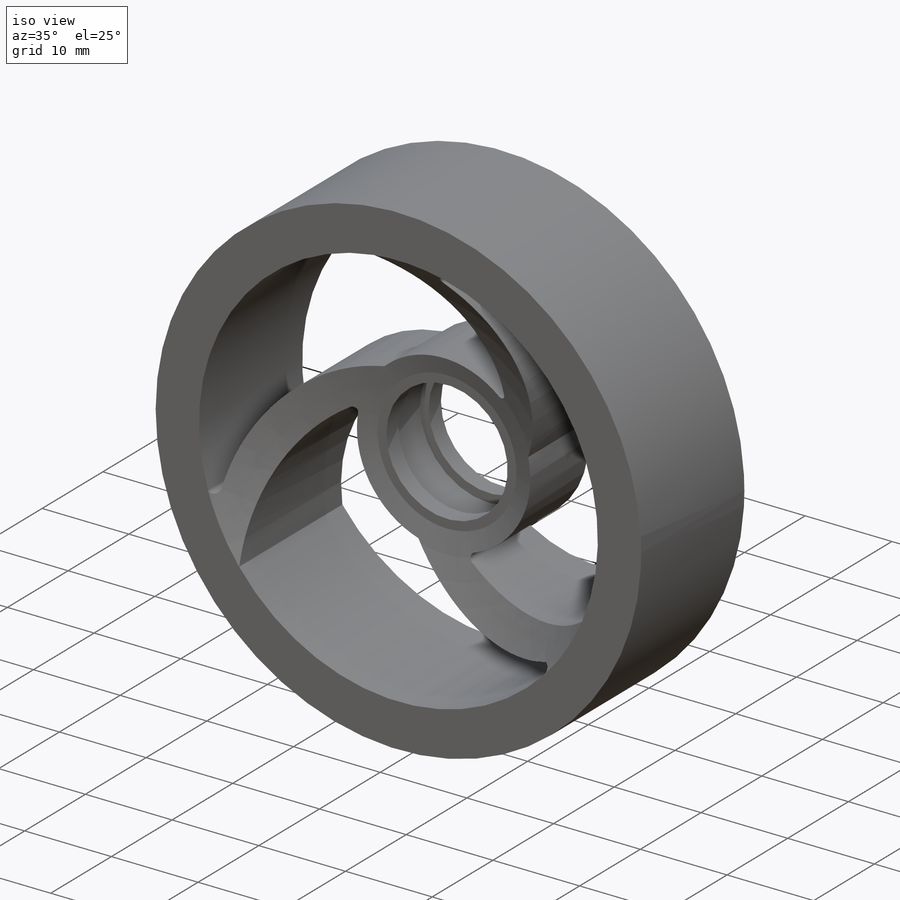
[diagram: iso view]
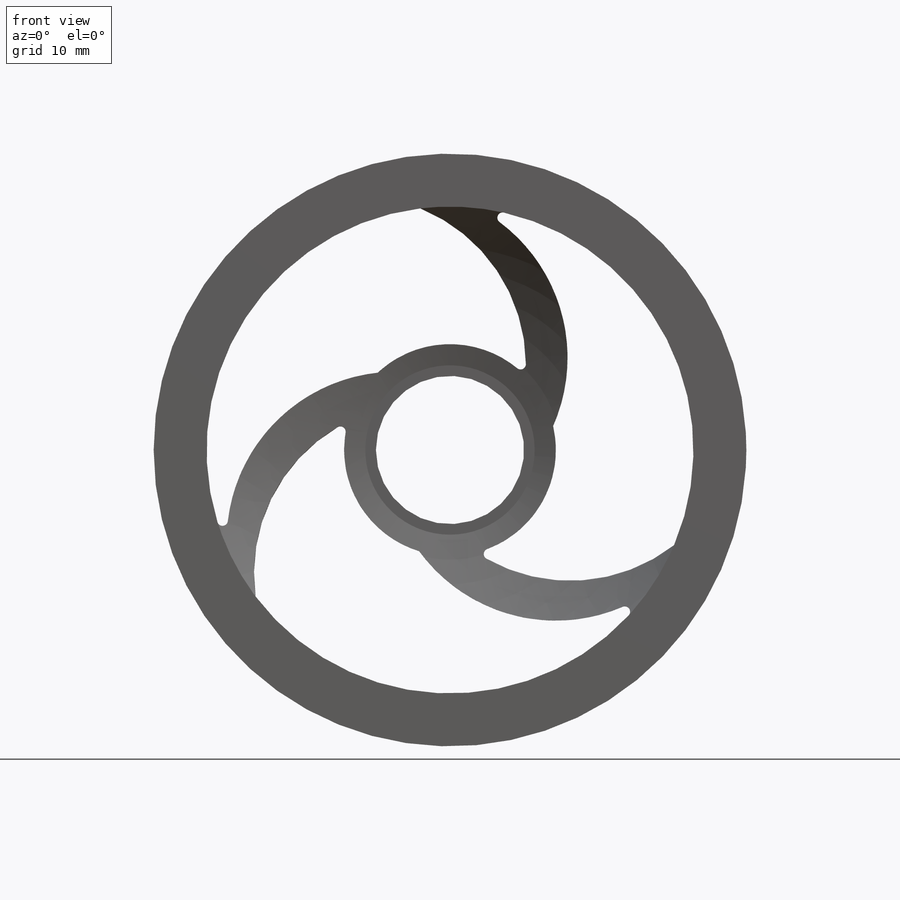
[diagram: front view]
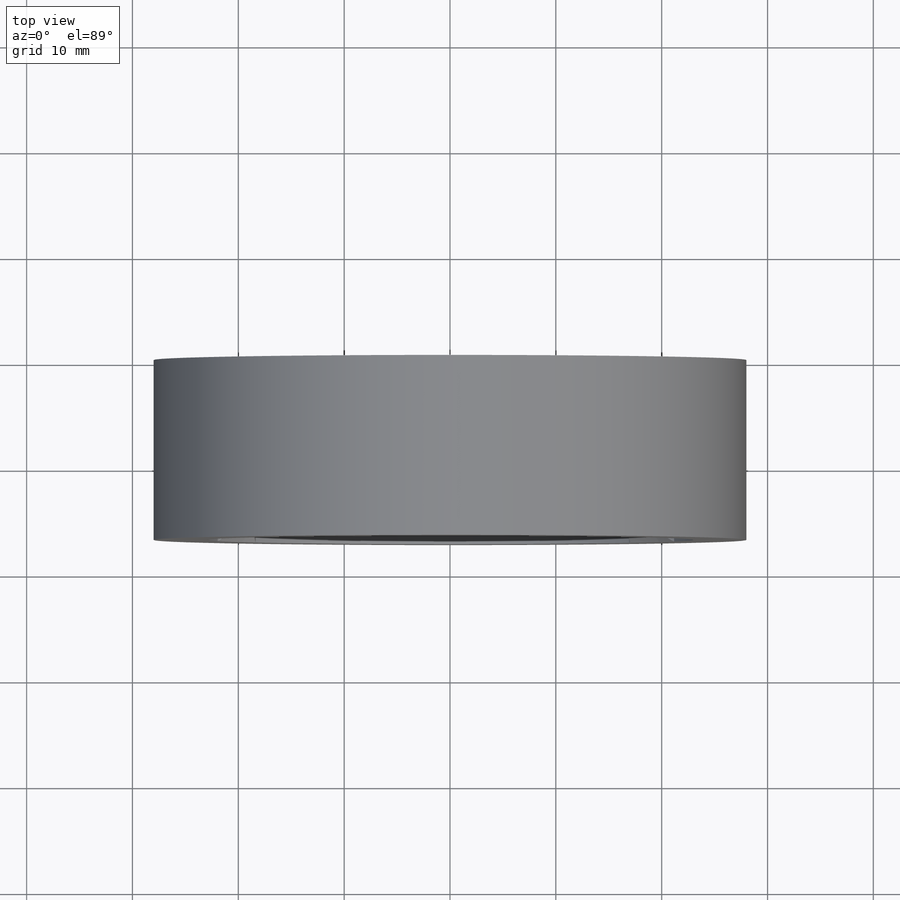
[diagram: top view]
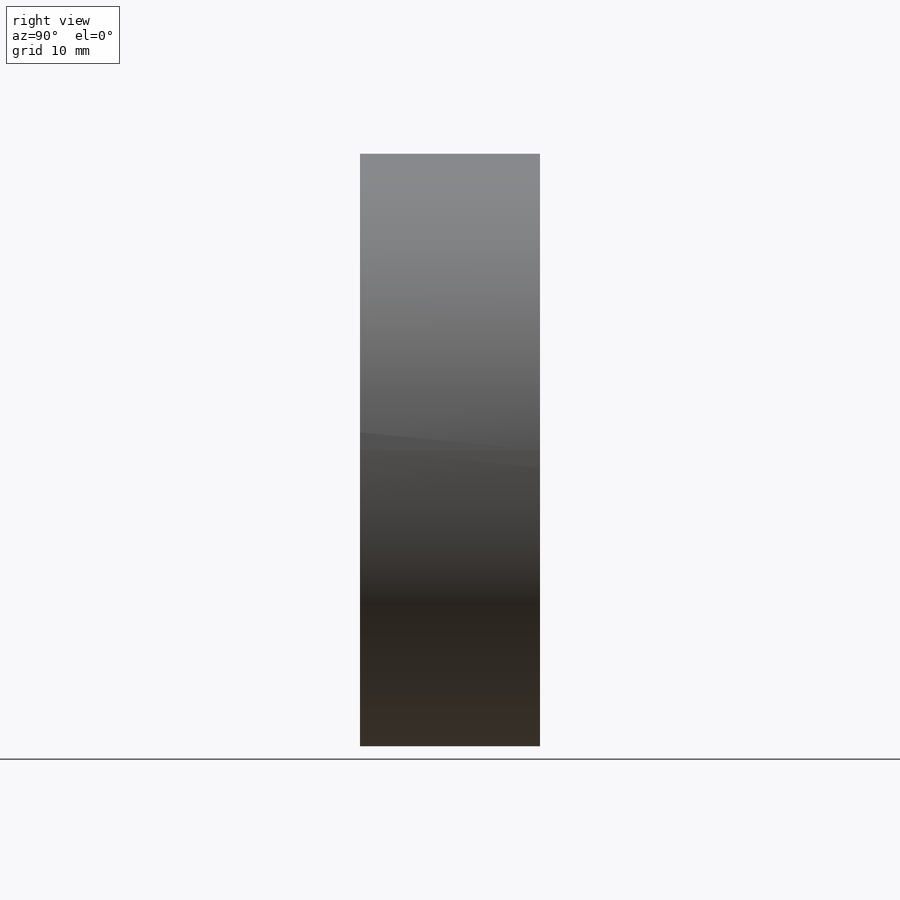
[diagram: right view]
SOLIDWORKS PART (.sldprt)
format: sldprt  version: not decoded by parser v0  size: 438,784 bytes
history: native  units: mm
features: sketch x5, extrude x3, pattern_circular x2, material x1, cut_revolve x1, pattern_linear x1, fillet x1 (+15 scaffold rows collapsed)
feature tree (29):
  scaffold x15  (default folders/planes/origin — collapsed)
  material  "Silicon"
  sketch  "Sketch1"  dims[c1.D1=56.0mm c1.D2=48.0mm c1.D3=62.0mm c1.D4=56.0mm c2.D3=48.0mm c2.D2=48.0mm c3.D3=2.0mm c3.D4=3.0mm c4.D3=4.0mm c4.D2=5.0mm]
  extrude  "Extrude1"  Depth=17mm
  sketch  "Sketch2"  dims[c1.D1=20.0mm c1.D2=5.0mm c1.D3=12.0mm c1.D5=16.0mm c1.D6=1.0mm c1.D7=1.0mm c1.D8=1.0mm c1.D9=1.0mm c1.D10=0.2mm c2.D6=1.0mm c2.D2=13.0mm c2.D4=16.0mm c3.D2=~14.112798mm c3.D3=3.0mm c3.D5=3.0mm c3.D6=13.0mm c4.D2=~15.694207mm c4.D3=16.0mm c4.D5=1.0mm c4.D4=1.0mm c4.D11=1.5mm c5.D11=120.0deg c5.D12=~14.71626mm c6.D12=120.0deg c6.D6=~0.026334mm c6.D2=3.0mm c6.D3=1.0mm c7.D2=3.0mm c7.D3=3.0mm c7.D5=3.0mm c7.D6=0.5mm c8.D2=4.0mm c8.D4=1.0mm]
  extrude  "Extrude2"  Depth=17mm
  sketch  "Sketch3"
  pattern_circular  "CirPattern1"  Count=3 Angle=360deg
  sketch  "Sketch5"  dims[c1.D1=50.0mm c1.D3=200.0mm c1.D2=69.62mm c1.D4=96.0mm c2.D2=8.0mm c2.D3=9.0mm c2.D1=23.0mm]
  cut_revolve  "Cut-Revolve1"  Angle=360deg
  sketch  "Sketch6"  dims[D1=1.0mm]
  extrude  "Extrude3"  Depth=2mm
  pattern_circular  "Axis2"  [2 undecoded]
  pattern_linear  "LPattern1"  Count1=2 Count2=1 Spacing1=7mm Spacing2=50mm
  fillet  "Fillet1"  Radius=0.5mm
decode coverage: 11 of 13 modeling features carry decoded parameters
note: ~ marks probable driven/reference dimensions
note: 2 parameter values undecoded
note: suppression state not decoded; provenance and decode notes live in map.json
